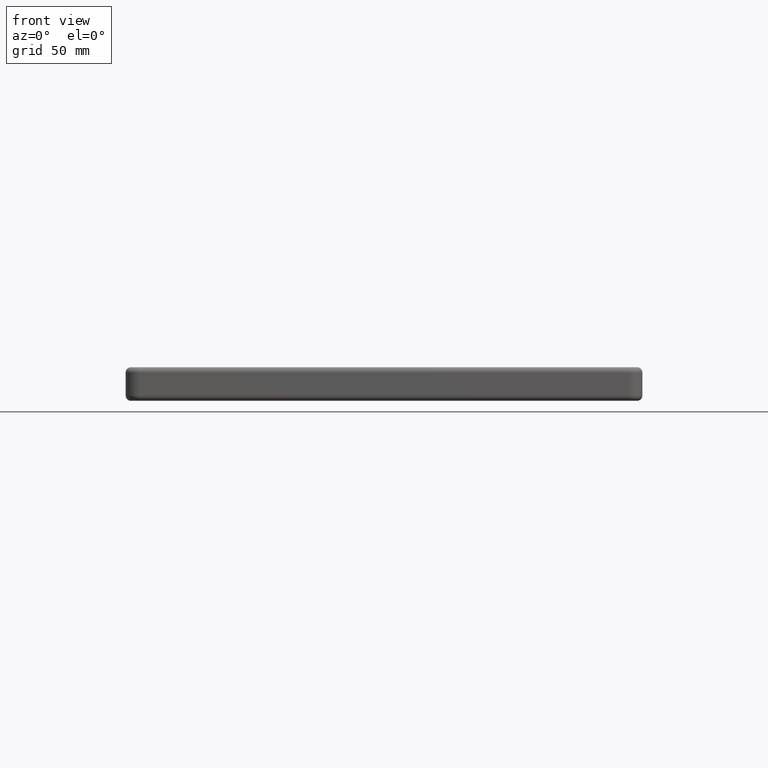
[diagram: clean part render]
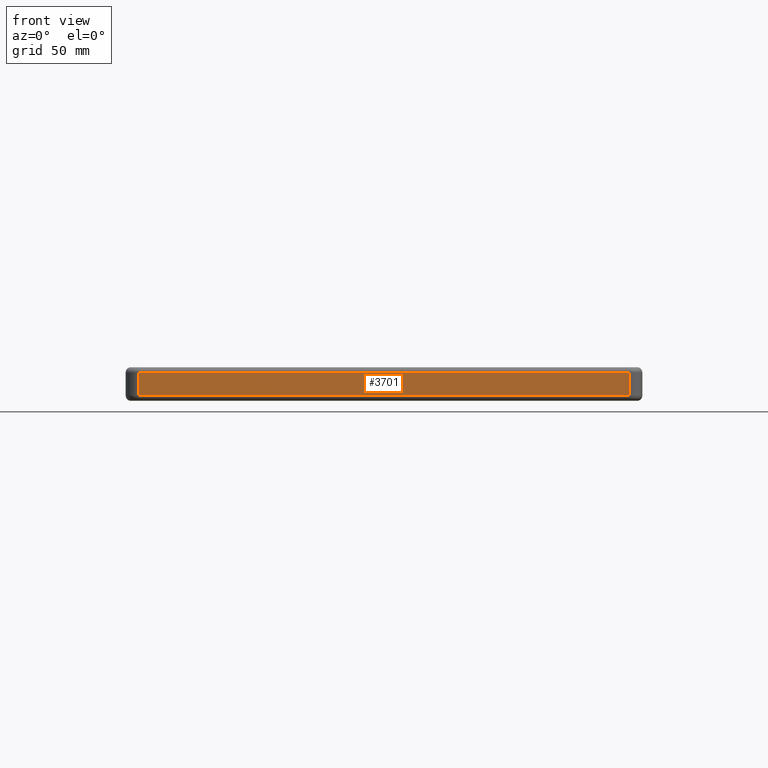
[diagram: same view with one face highlighted and labeled with its STEP entity id]
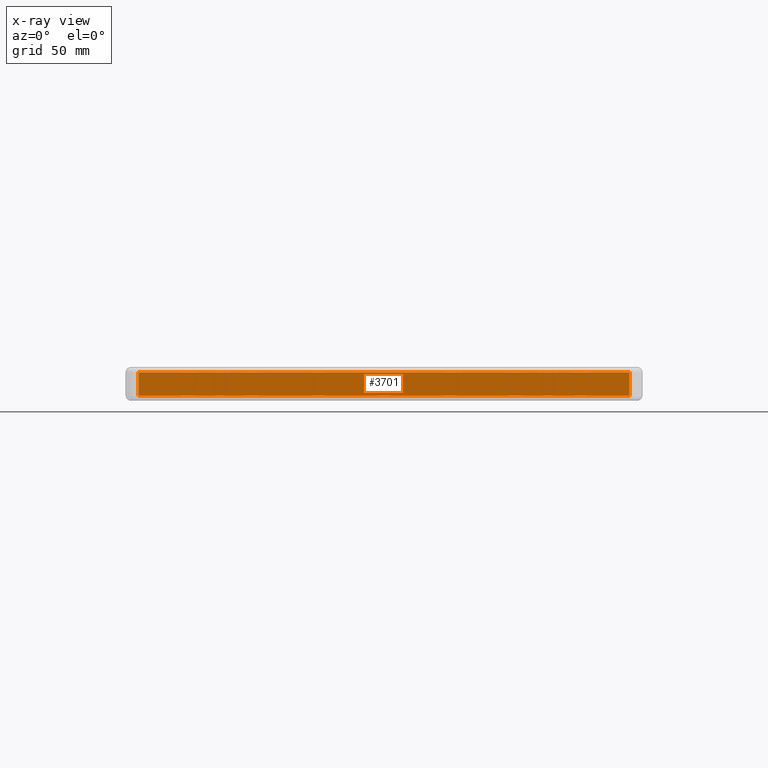
[diagram: x-ray of the same camera — body ghosted, the highlighted face saturated]
A machine part, front view. The second image highlights one B-rep face of the part: STEP entity #3701.
The next image is the same camera in x-ray: the body ghosted, the highlighted face saturated — about 0% of this face is hidden behind the body in this view.
In plain terms, the highlighted planar face has unit normal (0, -1, 0).
Its self-contained STEP definition (entity closure, byte-faithful):
#285 = LINE ( 'NONE', #3231, #2379 ) ;
#364 = FACE_OUTER_BOUND ( 'NONE', #4378, .T. ) ;
#714 = VERTEX_POINT ( 'NONE', #2384 ) ;
#752 = AXIS2_PLACEMENT_3D ( 'NONE', #932, #4242, #948 ) ;
#831 = CARTESIAN_POINT ( 'NONE',  ( -94.99999999999995700, -100.0000000000000400, -11.00000000000000000 ) ) ;
#932 = CARTESIAN_POINT ( 'NONE',  ( -94.99999999999995700, -100.0000000000000400, -13.00000000000000000 ) ) ;
#948 = DIRECTION ( 'NONE',  ( 0.0000000000000000000, -0.0000000000000000000, -1.000000000000000000 ) ) ;
#1015 = LINE ( 'NONE', #4905, #4031 ) ;
#1181 = DIRECTION ( 'NONE',  ( 0.0000000000000000000, 0.0000000000000000000, 1.000000000000000000 ) ) ;
#1234 = DIRECTION ( 'NONE',  ( 1.000000000000000000, 0.0000000000000000000, 0.0000000000000000000 ) ) ;
#1384 = EDGE_CURVE ( 'NONE', #5152, #1727, #1015, .T. ) ;
#1548 = EDGE_CURVE ( 'NONE', #3395, #714, #3184, .T. ) ;
#1708 = VECTOR ( 'NONE', #1234, 1000.000000000000000 ) ;
#1727 = VERTEX_POINT ( 'NONE', #3162 ) ;
#1763 = LINE ( 'NONE', #5081, #2979 ) ;
#1789 = PLANE ( 'NONE',  #752 ) ;
#1823 = DIRECTION ( 'NONE',  ( 0.0000000000000000000, 0.0000000000000000000, 1.000000000000000000 ) ) ;
#2379 = VECTOR ( 'NONE', #1181, 1000.000000000000000 ) ;
#2384 = CARTESIAN_POINT ( 'NONE',  ( 94.99999999999998600, -100.0000000000000400, -11.00000000000000000 ) ) ;
#2840 = EDGE_CURVE ( 'NONE', #714, #5152, #1763, .T. ) ;
#2931 = ORIENTED_EDGE ( 'NONE', *, *, #1548, .T. ) ;
#2971 = CARTESIAN_POINT ( 'NONE',  ( -94.99999999999995700, -100.0000000000000400, -11.00000000000000000 ) ) ;
#2979 = VECTOR ( 'NONE', #1823, 1000.000000000000000 ) ;
#3162 = CARTESIAN_POINT ( 'NONE',  ( -94.99999999999995700, -100.0000000000000400, -2.000000000000003600 ) ) ;
#3184 = LINE ( 'NONE', #831, #1708 ) ;
#3231 = CARTESIAN_POINT ( 'NONE',  ( -94.99999999999995700, -100.0000000000000400, -13.00000000000000000 ) ) ;
#3395 = VERTEX_POINT ( 'NONE', #2971 ) ;
#3436 = CARTESIAN_POINT ( 'NONE',  ( 94.99999999999998600, -100.0000000000000400, -2.000000000000003600 ) ) ;
#3701 = ADVANCED_FACE ( 'NONE', ( #364 ), #1789, .T. ) ;
#4002 = ORIENTED_EDGE ( 'NONE', *, *, #1384, .T. ) ;
#4031 = VECTOR ( 'NONE', #5270, 1000.000000000000000 ) ;
#4242 = DIRECTION ( 'NONE',  ( 0.0000000000000000000, -1.000000000000000000, 0.0000000000000000000 ) ) ;
#4378 = EDGE_LOOP ( 'NONE', ( #5043, #2931, #5288, #4002 ) ) ;
#4827 = EDGE_CURVE ( 'NONE', #3395, #1727, #285, .T. ) ;
#4905 = CARTESIAN_POINT ( 'NONE',  ( -94.99999999999994300, -100.0000000000000400, -2.000000000000000000 ) ) ;
#5043 = ORIENTED_EDGE ( 'NONE', *, *, #4827, .F. ) ;
#5081 = CARTESIAN_POINT ( 'NONE',  ( 94.99999999999998600, -100.0000000000000400, -13.00000000000000000 ) ) ;
#5152 = VERTEX_POINT ( 'NONE', #3436 ) ;
#5270 = DIRECTION ( 'NONE',  ( -1.000000000000000000, -0.0000000000000000000, 0.0000000000000000000 ) ) ;
#5288 = ORIENTED_EDGE ( 'NONE', *, *, #2840, .T. ) ;